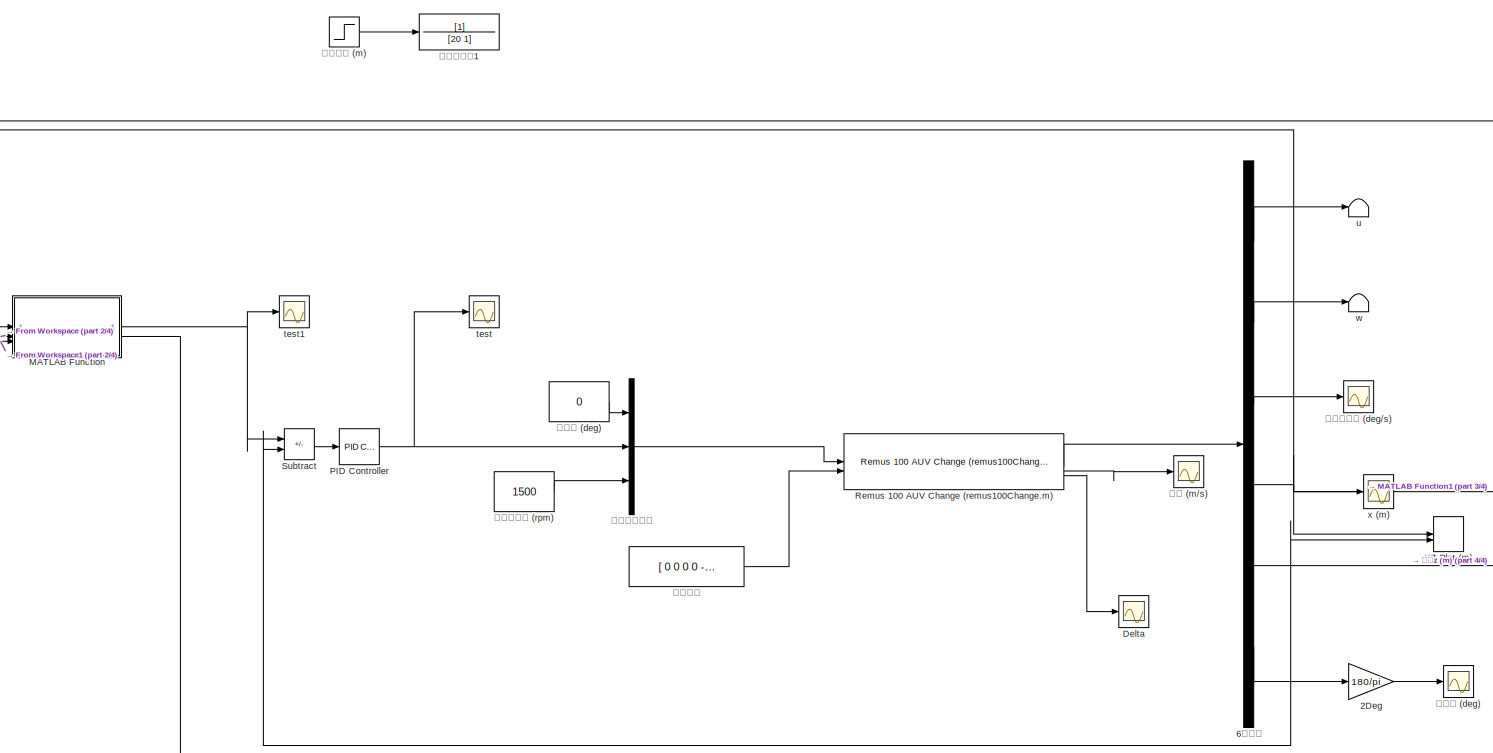
[diagram: root canvas - part 1/4, most of the canvas]
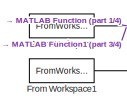
[diagram: root canvas - part 2/4, middle left region]
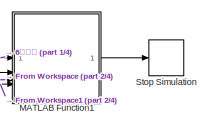
[diagram: root canvas - part 3/4, middle right region]
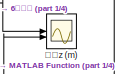
[diagram: root canvas - part 4/4, bottom right region]
MODEL slx_23f65fe76136
KIND model
CONFIG AbsTol = auto
CONFIG EnableMultiTasking = off
CONFIG FixedStep = auto
CONFIG MaxStep = auto
CONFIG MinStep = auto
CONFIG RelTol = 1e-3
CONFIG SampleTimeConstraint = Unconstrained
CONFIG SolverName = VariableStepAuto
CONFIG StartTime = 0.0
CONFIG StopTime = 400
BLOCK [Gain] 2Deg
  Gain = 180/pi
BLOCK [Demux] 6个输出
  Outputs = 6
BLOCK [Scope] Delta
  Floating = off
  NumInputPorts = 1
  ScopeSpecificationString = Simulink.scopes.TimeScopeBlockCfg('CurrentConfiguration', extmgr.ConfigurationSet(extmgr.Configuration('Core','General UI',true),extmgr.Configuration('Core','Source UI',true),extmgr.Configuration('Sources','WiredSimulink',true,'DataLoggingVariableName','ScopeData1'),extmgr.Configuration('Visuals','Time Domain',true,'SerializedDisplays',{struct('MinYLimReal','-0.41485','MaxYLimReal','3.73364','YLab...<+1458ch>
BLOCK [FromWorkspace] From Workspace
  VariableName = x_target
BLOCK [FromWorkspace] From Workspace1
  VariableName = z_target
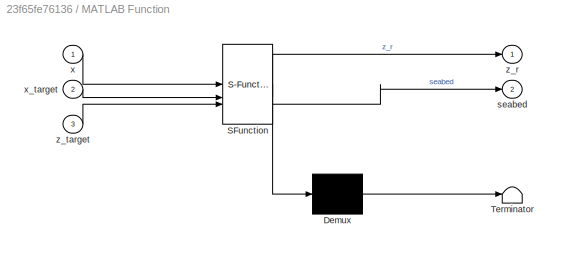
BLOCK [SubSystem] MATLAB Function
  ErrorFcn = Stateflow.Translate.translate
  LibrarySourceBlock = simulink/User-Defined\nFunctions/MATLAB Function
  PermitHierarchicalResolution = ExplicitOnly
  SFBlockType = MATLAB Function
  TreatAsAtomicUnit = on
BLOCK [Demux] MATLAB Function/ Demux 
  Outputs = 1
BLOCK [S-Function] MATLAB Function/ SFunction 
  EnableBusSupport = on
  FunctionName = sf_sfun
  PortCounts = [3 3]
  SFcnIsStateOwnerBlock = off
  SFunctionDeploymentMode = off
  Tag = Stateflow S-Function 2
BLOCK [Terminator] MATLAB Function/ Terminator 
BLOCK [Outport] MATLAB Function/seabed
  Port = 2
BLOCK [Inport] MATLAB Function/x
BLOCK [Inport] MATLAB Function/x_target
  Port = 2
BLOCK [Outport] MATLAB Function/z_r
BLOCK [Inport] MATLAB Function/z_target
  Port = 3
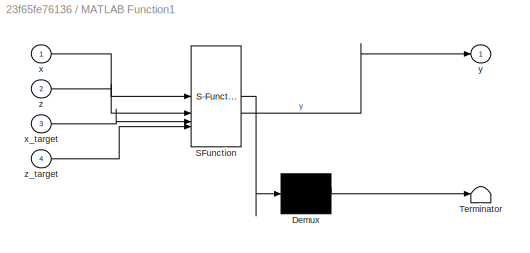
BLOCK [SubSystem] MATLAB Function1
  ErrorFcn = Stateflow.Translate.translate
  LibrarySourceBlock = simulink/User-Defined\nFunctions/MATLAB Function
  PermitHierarchicalResolution = ExplicitOnly
  SFBlockType = MATLAB Function
  TreatAsAtomicUnit = on
BLOCK [Demux] MATLAB Function1/ Demux 
  Outputs = 1
BLOCK [S-Function] MATLAB Function1/ SFunction 
  EnableBusSupport = on
  FunctionName = sf_sfun
  PortCounts = [4 2]
  SFcnIsStateOwnerBlock = off
  SFunctionDeploymentMode = off
  Tag = Stateflow S-Function 1
BLOCK [Terminator] MATLAB Function1/ Terminator 
BLOCK [Inport] MATLAB Function1/x
BLOCK [Inport] MATLAB Function1/x_target
  Port = 3
BLOCK [Outport] MATLAB Function1/y
BLOCK [Inport] MATLAB Function1/z
  Port = 2
BLOCK [Inport] MATLAB Function1/z_target
  Port = 4
BLOCK [Reference] PID Controller  REF=slpidlib/PID Controller
  LibrarySourceBlock = simulink/Continuous/PID Controller
  SourceBlock = slpidlib/PID Controller
  SourceType = PID 1dof
BLOCK [Reference] Remus 100 AUV Change (remus100Change.m)  REF=mssSimulink/Marine craft models/Remus 100 AUV Change (remus100Change.m)
  SourceBlock = mssSimulink/Marine craft models/Remus 100 AUV Change (remus100Change.m)
BLOCK [Stop] Stop Simulation
BLOCK [Sum] Subtract
  IconShape = rectangular
  Inputs = +-
BLOCK [Record] XZ Plot (m)
  CompatibilityTag = XY
  FileSettingsInternal = {"entries":[{"content":{"excelSettings":{"content":{},"type":"Streamout.ExcelSettings"}},"type":"Streamout.FileSettingStorage","uuid":""}],"packageUris":["http:\/\/schema.mathworks.com\/mf0\/streamout_blocks\/R2020a"],"version":"1.0"}
  Layout = [1 1]
  SignalsInternal = {"entries":[{"content":{"signals":[{"content":{"blockPath":[],"dimensions":[1,1],"domain":"","lineColor":"#77ac30","plots":[1],"port":1,"sid":[""],"signalID":19,"signalName":"6个输出:4"},"type":"RecordBlkView.Signal","uuid":""},{"content":{"blockPath":[],"dimensions":[1,1],"domain":"","lineColor":"#4dbeee","plots":[1],"port":2,"sid":[""],"signalID":23,"signalName":"6个输出:5"},"type":"RecordBlkView.Sign...<+160ch>
  VisualizationBindings = {"xyplotplugin":{"info":[{"series":[{"bindingParametersList":[{"parameter":"Y-Axis","signalID":23,"signalName":"6个输出:5"}],"seriesID":771},{"bindingParametersList":[{"parameter":"Y-Axis","signalID":23,"signalName":"6个输出:5"},{"parameter":"X-Axis","signalID":19,"signalName":"6个输出:4"}],"seriesID":37341}],"subplotID":1}]}}
  st = -1
BLOCK [Scope] test
  Floating = off
  NumInputPorts = 1
  ScopeSpecificationString = Simulink.scopes.TimeScopeBlockCfg('CurrentConfiguration', extmgr.ConfigurationSet(extmgr.Configuration('Core','General UI',true),extmgr.Configuration('Core','Source UI',true),extmgr.Configuration('Sources','WiredSimulink',true,'DataLoggingVariableName','ScopeData6'),extmgr.Configuration('Visuals','Time Domain',true,'SerializedDisplays',{struct('MinYLimReal','-563710.52738','MaxYLimReal','63394.746...<+1467ch>
BLOCK [Scope] test1
  Floating = off
  NumInputPorts = 1
  ScopeSpecificationString = Simulink.scopes.TimeScopeBlockCfg('CurrentConfiguration', extmgr.ConfigurationSet(extmgr.Configuration('Core','General UI',true),extmgr.Configuration('Core','Source UI',true),extmgr.Configuration('Sources','WiredSimulink',true,'DataLoggingVariableName','ScopeData1'),extmgr.Configuration('Visuals','Time Domain',true,'SerializedDisplays',{struct('MinYLimReal','-100.00000','MaxYLimReal','-80.00000','...<+1483ch>
BLOCK [Terminator] u
BLOCK [Terminator] w
BLOCK [Scope] x (m)
  Floating = off
  NumInputPorts = 1
  ScopeSpecificationString = Simulink.scopes.TimeScopeBlockCfg('CurrentConfiguration', extmgr.ConfigurationSet(extmgr.Configuration('Core','General UI',true),extmgr.Configuration('Core','Source UI',true),extmgr.Configuration('Sources','WiredSimulink',true,'DataLoggingVariableName','ScopeData2'),extmgr.Configuration('Visuals','Time Domain',true,'SerializedDisplays',{struct('MinYLimReal','-245.90938','MaxYLimReal','2213.18445',...<+1441ch>
BLOCK [Mux] 三个控制输入
  DisplayOption = bar
  Inputs = [1 1 1]
BLOCK [TransferFcn] 低通滤波器1
  Denominator = [20 1]
BLOCK [Scope] 俯仰角 (deg)
  Floating = off
  NumInputPorts = 1
  ScopeSpecificationString = Simulink.scopes.TimeScopeBlockCfg('CurrentConfiguration', extmgr.ConfigurationSet(extmgr.Configuration('Core','General UI',true),extmgr.Configuration('Core','Source UI',true),extmgr.Configuration('Sources','WiredSimulink',true,'DataLoggingVariableName','ScopeData4'),extmgr.Configuration('Visuals','Time Domain',true,'SerializedDisplays',{struct('MinYLimReal','-38.52715','MaxYLimReal','46.78224','YL...<+1427ch>
BLOCK [Scope] 俯仰角速度 (deg//s)
  Floating = off
  NumInputPorts = 1
  ScopeSpecificationString = Simulink.scopes.TimeScopeBlockCfg('CurrentConfiguration', extmgr.ConfigurationSet(extmgr.Configuration('Core','General UI',true),extmgr.Configuration('Core','Source UI',true),extmgr.Configuration('Sources','WiredSimulink',true,'DataLoggingVariableName','ScopeData2'),extmgr.Configuration('Visuals','Time Domain',true,'SerializedDisplays',{struct('MinYLimReal','-11.39776','MaxYLimReal','1.26642','YLa...<+1427ch>
BLOCK [Constant] 初始状态
  Value = [ 0 0 0 0 -80 0]
BLOCK [Constant] 方向角 (deg)
  Value = 0
BLOCK [Scope] 深度z (m)
  Floating = off
  NumInputPorts = 2
  ScopeSpecificationString = Simulink.scopes.TimeScopeBlockCfg('CurrentConfiguration', extmgr.ConfigurationSet(extmgr.Configuration('Core','General UI',true),extmgr.Configuration('Core','Source UI',true),extmgr.Configuration('Sources','WiredSimulink',true,'DataLoggingVariableName','ScopeData3'),extmgr.Configuration('Visuals','Time Domain',true,'SerializedDisplays',{struct('MinYLimReal','-102.5','MaxYLimReal','-77.5','YLabelRe...<+1463ch>
BLOCK [Step] 目标深度 (m)
  After = -150
  Before = -100
  SampleTime = 0
  Time = 200
BLOCK [Constant] 螺旋桨转速 (rpm)
  Value = 1500
BLOCK [Scope] 速度 (m//s)
  Floating = off
  NumInputPorts = 1
  ScopeSpecificationString = Simulink.scopes.TimeScopeBlockCfg('CurrentConfiguration', extmgr.ConfigurationSet(extmgr.Configuration('Core','General UI',true),extmgr.Configuration('Core','Source UI',true),extmgr.Configuration('Sources','WiredSimulink',true),extmgr.Configuration('Visuals','Time Domain',true,'SerializedDisplays',{struct('MinYLimReal','-0.41485','MaxYLimReal','3.73364','YLabelReal','','MinYLimMag','0.00000','MaxY...<+1419ch>
LINE 2Deg:1 -> 俯仰角 (deg):1
LINE 6个输出:1 -> u:1
LINE 6个输出:2 -> w:1
LINE 6个输出:3 -> 俯仰角速度 (deg//s):1
NET 6个输出:4 -> MATLAB Function1:1, MATLAB Function:1, XZ Plot (m):1, x (m):1
NET 6个输出:5 -> MATLAB Function1:2, Subtract:2, XZ Plot (m):2, 深度z (m):1
LINE 6个输出:6 -> 2Deg:1
NET From Workspace1:1 -> MATLAB Function1:4, MATLAB Function:3
NET From Workspace:1 -> MATLAB Function1:3, MATLAB Function:2
LINE MATLAB Function1:1 -> Stop Simulation:1
NET MATLAB Function:1 -> Subtract:1, test1:1
LINE MATLAB Function:2 -> 深度z (m):2
NET PID Controller:1 -> test:1, 三个控制输入:2
LINE Remus 100 AUV Change (remus100Change.m):1 -> 6个输出:1
LINE Remus 100 AUV Change (remus100Change.m):2 -> 速度 (m//s):1
LINE Remus 100 AUV Change (remus100Change.m):3 -> Delta:1
LINE Subtract:1 -> PID Controller:1
LINE 三个控制输入:1 -> Remus 100 AUV Change (remus100Change.m):1
LINE 初始状态:1 -> Remus 100 AUV Change (remus100Change.m):2
LINE 方向角 (deg):1 -> 三个控制输入:1
LINE 目标深度 (m):1 -> 低通滤波器1:1
LINE 螺旋桨转速 (rpm):1 -> 三个控制输入:3
note: NET lines group one-source signal fan-out (src -> all destinations, sorted); 1:1 wires keep LINE
CHART MATLAB Function1 states=1 transitions=1
  STATE_LABEL 'eML_blk_kernel()'
  STATE_LABEL "SCRIPT:\nfunction y = fcn(x, z, x_target, z_target)\nz_r = interp1(x_target,z_target,x,'spline');\nif z_r > z\n    y = 0;\nelse\n    y = 0;\nend\n"
CHART MATLAB Function states=1 transitions=1
  STATE_LABEL 'eML_blk_kernel()'
  STATE_LABEL "SCRIPT:\nfunction [z_r, seabed] = fcn(x, x_target, z_target)\n%x_target = 0:0.01:1000;\n%z_target=10*sin(0.05*x_target)-100;\nseabed = interp1(x_target,z_target,x,'spline');\nz_r = seabed + 10;\n\n"
CHART  states=0 transitions=0
CHART  states=0 transitions=0
